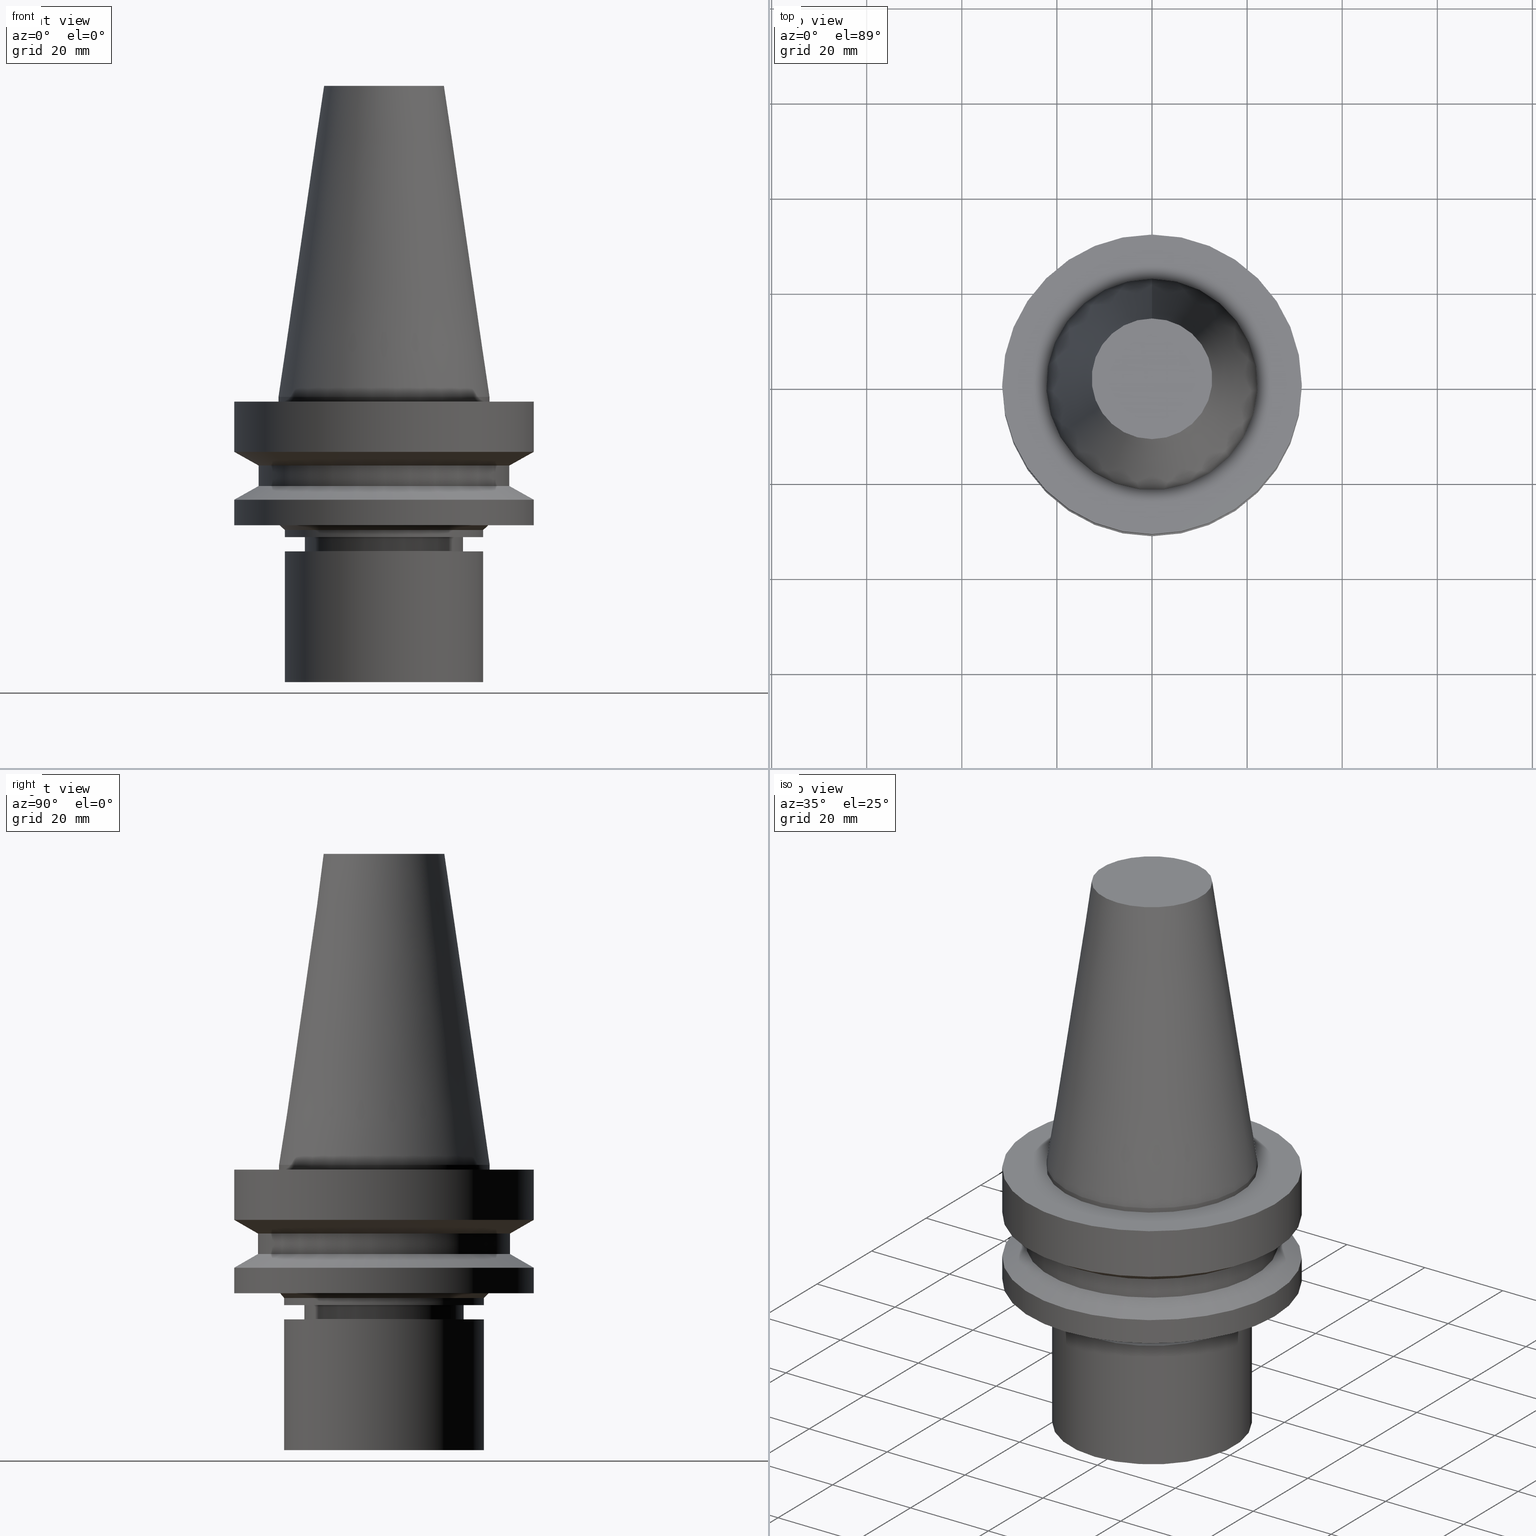
[diagram: canonical four-view strip — front | top / right | iso, engineering-drawing reading convention]
A machine part, canonical four-view strip (front | top / right | iso — engineering-drawing reading convention). The complete STEP part file that produces these views, byte-faithful:
ISO-10303-21;
HEADER;
FILE_DESCRIPTION((''),'1');
FILE_NAME('V:/90_\X2\53D65F9730C730FC30BF\X0\/00_\X2\6DE18DEF30C730FC30BF\X0\/ALL/BBT-BKUS\X2\FF76FF80FF9BFF78FF9E752852A05DE556F3\X0\201801/BBT40-MEGAER/BBT40-MEGAER25-60NL.stp','2018-02-07T02:12:14',(''),(''),'Spatial Interop R21 SP3','Kubotek KeyCreator 2011 V10.0.2 (22737)',' ');
FILE_SCHEMA(('automotive_design'));
ENDSEC;
DATA;
#1=MECHANICAL_DESIGN_GEOMETRIC_PRESENTATION_REPRESENTATION(' ',(#14,#15,#16,#17,#18,#19,#20,#21,#22,#23,#24,#25,#26,#27,#28,#29,#30,#31,#32,#33,#34,#35,#36,#37,#38,#39,#40,#41,#42,#43,#44,#45,#46,#47,#48,#49,#50,#51,#52,#53,#54,#55),#10);
#2=PRODUCT_DEFINITION_CONTEXT('',#56,'design');
#3=APPLICATION_PROTOCOL_DEFINITION('INTERNATIONAL STANDARD','automotive_design',1994,#56);
#4=PRODUCT_CATEGORY_RELATIONSHIP('NONE','NONE',#57,#58);
#5=SHAPE_DEFINITION_REPRESENTATION(#59,#60);
#6=PRODUCT_DEFINITION_CONTEXT('',#61,'design');
#7=APPLICATION_PROTOCOL_DEFINITION('INTERNATIONAL STANDARD','automotive_design',1994,#61);
#8=PRODUCT_CATEGORY_RELATIONSHIP('NONE','NONE',#62,#63);
#9=SHAPE_DEFINITION_REPRESENTATION(#64,#65);
#10= (GEOMETRIC_REPRESENTATION_CONTEXT(3)GLOBAL_UNCERTAINTY_ASSIGNED_CONTEXT((#68))GLOBAL_UNIT_ASSIGNED_CONTEXT((#70,#71,#72))REPRESENTATION_CONTEXT('NONE','WORKSPACE'));
#14=STYLED_ITEM('',(#74,#75),#76);
#15=STYLED_ITEM('',(#77,#78),#79);
#16=STYLED_ITEM('',(#80),#81);
#17=STYLED_ITEM('',(#82,#83),#84);
#18=STYLED_ITEM('',(#85),#86);
#19=STYLED_ITEM('',(#87),#88);
#20=STYLED_ITEM('',(#89),#90);
#21=STYLED_ITEM('',(#91,#92),#93);
#22=STYLED_ITEM('',(#94,#95),#96);
#23=STYLED_ITEM('',(#97,#98),#99);
#24=STYLED_ITEM('',(#100),#101);
#25=STYLED_ITEM('',(#102),#103);
#26=STYLED_ITEM('',(#104),#105);
#27=STYLED_ITEM('',(#106),#107);
#28=STYLED_ITEM('',(#108,#109),#110);
#29=STYLED_ITEM('',(#111),#112);
#30=STYLED_ITEM('',(#113),#114);
#31=STYLED_ITEM('',(#115,#116),#117);
#32=STYLED_ITEM('',(#118,#119),#120);
#33=STYLED_ITEM('',(#121),#122);
#34=STYLED_ITEM('',(#123,#124),#125);
#35=STYLED_ITEM('',(#126,#127),#128);
#36=STYLED_ITEM('',(#129,#130),#131);
#37=STYLED_ITEM('',(#132,#133),#134);
#38=STYLED_ITEM('',(#135,#136),#137);
#39=STYLED_ITEM('',(#138),#139);
#40=STYLED_ITEM('',(#140),#141);
#41=STYLED_ITEM('',(#142),#143);
#42=STYLED_ITEM('',(#144),#145);
#43=STYLED_ITEM('',(#146),#147);
#44=STYLED_ITEM('',(#148,#149),#150);
#45=STYLED_ITEM('',(#151,#152),#153);
#46=STYLED_ITEM('',(#154),#155);
#47=STYLED_ITEM('',(#156,#157),#158);
#48=STYLED_ITEM('',(#159,#160),#161);
#49=STYLED_ITEM('',(#162),#163);
#50=STYLED_ITEM('',(#164,#165),#166);
#51=STYLED_ITEM('',(#167,#168),#169);
#52=STYLED_ITEM('',(#170,#171),#172);
#53=STYLED_ITEM('',(#173),#174);
#54=STYLED_ITEM('',(#175,#176),#177);
#55=STYLED_ITEM('',(#178,#179),#180);
#56=APPLICATION_CONTEXT(' ');
#57=PRODUCT_CATEGORY('part','NONE');
#58=PRODUCT_RELATED_PRODUCT_CATEGORY('detail',' ',(#181));
#59=PRODUCT_DEFINITION_SHAPE('NONE','NONE',#182);
#60=ADVANCED_BREP_SHAPE_REPRESENTATION('Unnamed[1]',(#76,#183),#10);
#61=APPLICATION_CONTEXT(' ');
#62=PRODUCT_CATEGORY('part','NONE');
#63=PRODUCT_RELATED_PRODUCT_CATEGORY('detail',' ',(#184));
#64=PRODUCT_DEFINITION_SHAPE('NONE','NONE',#185);
#65=ADVANCED_BREP_SHAPE_REPRESENTATION('Unnamed[1]',(#177,#186),#10);
#68=UNCERTAINTY_MEASURE_WITH_UNIT(LENGTH_MEASURE(1.0E-006),#70,'','');
#70= (CONVERSION_BASED_UNIT('MILLIMETRE',#189)LENGTH_UNIT()NAMED_UNIT(#192));
#71= (NAMED_UNIT(#194)PLANE_ANGLE_UNIT()SI_UNIT($,.RADIAN.));
#72= (NAMED_UNIT(#194)SOLID_ANGLE_UNIT()SI_UNIT($,.STERADIAN.));
#74=PRESENTATION_STYLE_ASSIGNMENT((#200));
#75=PRESENTATION_STYLE_ASSIGNMENT((#201));
#76=MANIFOLD_SOLID_BREP('Unnamed[1]',#202);
#77=PRESENTATION_STYLE_ASSIGNMENT((#203));
#78=PRESENTATION_STYLE_ASSIGNMENT((#204));
#79=ADVANCED_FACE('Unnamed[1]',(#205,#206),#207,.T.);
#80=PRESENTATION_STYLE_ASSIGNMENT((#208));
#81=EDGE_CURVE('Unnamed[1]',#209,#209,#210,.T.);
#82=PRESENTATION_STYLE_ASSIGNMENT((#211));
#83=PRESENTATION_STYLE_ASSIGNMENT((#212));
#84=ADVANCED_FACE('Unnamed[1]',(#213),#214,.T.);
#85=PRESENTATION_STYLE_ASSIGNMENT((#215));
#86=EDGE_CURVE('Unnamed[1]',#216,#216,#217,.T.);
#87=PRESENTATION_STYLE_ASSIGNMENT((#218));
#88=EDGE_CURVE('Unnamed[1]',#219,#219,#220,.T.);
#89=PRESENTATION_STYLE_ASSIGNMENT((#221));
#90=EDGE_CURVE('Unnamed[1]',#222,#222,#223,.T.);
#91=PRESENTATION_STYLE_ASSIGNMENT((#224));
#92=PRESENTATION_STYLE_ASSIGNMENT((#225));
#93=ADVANCED_FACE('Unnamed[1]',(#226,#227),#228,.T.);
#94=PRESENTATION_STYLE_ASSIGNMENT((#229));
#95=PRESENTATION_STYLE_ASSIGNMENT((#230));
#96=ADVANCED_FACE('Unnamed[1]',(#231),#232,.T.);
#97=PRESENTATION_STYLE_ASSIGNMENT((#233));
#98=PRESENTATION_STYLE_ASSIGNMENT((#234));
#99=ADVANCED_FACE('Unnamed[1]',(#235,#236),#237,.T.);
#100=PRESENTATION_STYLE_ASSIGNMENT((#238));
#101=EDGE_CURVE('Unnamed[1]',#239,#239,#240,.T.);
#102=PRESENTATION_STYLE_ASSIGNMENT((#241));
#103=EDGE_CURVE('Unnamed[1]',#242,#242,#243,.T.);
#104=PRESENTATION_STYLE_ASSIGNMENT((#244));
#105=EDGE_CURVE('Unnamed[1]',#245,#245,#246,.T.);
#106=PRESENTATION_STYLE_ASSIGNMENT((#247));
#107=EDGE_CURVE('Unnamed[1]',#248,#248,#249,.T.);
#108=PRESENTATION_STYLE_ASSIGNMENT((#250));
#109=PRESENTATION_STYLE_ASSIGNMENT((#251));
#110=ADVANCED_FACE('Unnamed[1]',(#252,#253),#254,.T.);
#111=PRESENTATION_STYLE_ASSIGNMENT((#255));
#112=EDGE_CURVE('Unnamed[1]',#256,#256,#257,.T.);
#113=PRESENTATION_STYLE_ASSIGNMENT((#258));
#114=EDGE_CURVE('Unnamed[1]',#259,#259,#260,.T.);
#115=PRESENTATION_STYLE_ASSIGNMENT((#261));
#116=PRESENTATION_STYLE_ASSIGNMENT((#262));
#117=ADVANCED_FACE('Unnamed[1]',(#263,#264),#265,.T.);
#118=PRESENTATION_STYLE_ASSIGNMENT((#266));
#119=PRESENTATION_STYLE_ASSIGNMENT((#267));
#120=ADVANCED_FACE('Unnamed[1]',(#268,#269),#270,.T.);
#121=PRESENTATION_STYLE_ASSIGNMENT((#271));
#122=EDGE_CURVE('Unnamed[1]',#272,#272,#273,.T.);
#123=PRESENTATION_STYLE_ASSIGNMENT((#274));
#124=PRESENTATION_STYLE_ASSIGNMENT((#275));
#125=ADVANCED_FACE('Unnamed[1]',(#276,#277),#278,.T.);
#126=PRESENTATION_STYLE_ASSIGNMENT((#279));
#127=PRESENTATION_STYLE_ASSIGNMENT((#280));
#128=ADVANCED_FACE('Unnamed[1]',(#281,#282),#283,.T.);
#129=PRESENTATION_STYLE_ASSIGNMENT((#284));
#130=PRESENTATION_STYLE_ASSIGNMENT((#285));
#131=ADVANCED_FACE('Unnamed[1]',(#286,#287),#288,.T.);
#132=PRESENTATION_STYLE_ASSIGNMENT((#289));
#133=PRESENTATION_STYLE_ASSIGNMENT((#290));
#134=ADVANCED_FACE('Unnamed[1]',(#291),#292,.T.);
#135=PRESENTATION_STYLE_ASSIGNMENT((#293));
#136=PRESENTATION_STYLE_ASSIGNMENT((#294));
#137=ADVANCED_FACE('Unnamed[1]',(#295,#296),#297,.T.);
#138=PRESENTATION_STYLE_ASSIGNMENT((#298));
#139=EDGE_CURVE('Unnamed[1]',#299,#299,#300,.T.);
#140=PRESENTATION_STYLE_ASSIGNMENT((#301));
#141=EDGE_CURVE('Unnamed[1]',#302,#302,#303,.T.);
#142=PRESENTATION_STYLE_ASSIGNMENT((#304));
#143=EDGE_CURVE('Unnamed[1]',#305,#305,#306,.T.);
#144=PRESENTATION_STYLE_ASSIGNMENT((#307));
#145=EDGE_CURVE('Unnamed[1]',#308,#308,#309,.T.);
#146=PRESENTATION_STYLE_ASSIGNMENT((#310));
#147=EDGE_CURVE('Unnamed[1]',#311,#311,#312,.T.);
#148=PRESENTATION_STYLE_ASSIGNMENT((#313));
#149=PRESENTATION_STYLE_ASSIGNMENT((#314));
#150=ADVANCED_FACE('Unnamed[1]',(#315,#316),#317,.T.);
#151=PRESENTATION_STYLE_ASSIGNMENT((#318));
#152=PRESENTATION_STYLE_ASSIGNMENT((#319));
#153=ADVANCED_FACE('Unnamed[1]',(#320,#321),#322,.T.);
#154=PRESENTATION_STYLE_ASSIGNMENT((#323));
#155=EDGE_CURVE('Unnamed[1]',#324,#324,#325,.T.);
#156=PRESENTATION_STYLE_ASSIGNMENT((#326));
#157=PRESENTATION_STYLE_ASSIGNMENT((#327));
#158=ADVANCED_FACE('Unnamed[1]',(#328,#329),#330,.T.);
#159=PRESENTATION_STYLE_ASSIGNMENT((#331));
#160=PRESENTATION_STYLE_ASSIGNMENT((#332));
#161=ADVANCED_FACE('Unnamed[1]',(#333,#334),#335,.T.);
#162=PRESENTATION_STYLE_ASSIGNMENT((#336));
#163=EDGE_CURVE('Unnamed[1]',#337,#337,#338,.T.);
#164=PRESENTATION_STYLE_ASSIGNMENT((#339));
#165=PRESENTATION_STYLE_ASSIGNMENT((#340));
#166=ADVANCED_FACE('Unnamed[1]',(#341,#342),#343,.T.);
#167=PRESENTATION_STYLE_ASSIGNMENT((#344));
#168=PRESENTATION_STYLE_ASSIGNMENT((#345));
#169=ADVANCED_FACE('Unnamed[1]',(#346,#347),#348,.T.);
#170=PRESENTATION_STYLE_ASSIGNMENT((#349));
#171=PRESENTATION_STYLE_ASSIGNMENT((#350));
#172=ADVANCED_FACE('Unnamed[1]',(#351),#352,.T.);
#173=PRESENTATION_STYLE_ASSIGNMENT((#353));
#174=EDGE_CURVE('Unnamed[1]',#354,#354,#355,.T.);
#175=PRESENTATION_STYLE_ASSIGNMENT((#356));
#176=PRESENTATION_STYLE_ASSIGNMENT((#357));
#177=MANIFOLD_SOLID_BREP('Unnamed[1]',#358);
#178=PRESENTATION_STYLE_ASSIGNMENT((#359));
#179=PRESENTATION_STYLE_ASSIGNMENT((#360));
#180=ADVANCED_FACE('Unnamed[1]',(#361,#362),#363,.T.);
#181=PRODUCT('Unnamed[1]','Unnamed[1]','PART-Unnamed[1]-DESC',(#364));
#182=PRODUCT_DEFINITION('NONE','NONE',#365,#2);
#183=AXIS2_PLACEMENT_3D('',#366,#367,#368);
#184=PRODUCT('Unnamed[1]','Unnamed[1]','PART-Unnamed[1]-DESC',(#369));
#185=PRODUCT_DEFINITION('NONE','NONE',#370,#6);
#186=AXIS2_PLACEMENT_3D('',#371,#372,#373);
#189=LENGTH_MEASURE_WITH_UNIT(LENGTH_MEASURE(1.0),#374);
#192=DIMENSIONAL_EXPONENTS(1.0,0.0,0.0,0.0,0.0,0.0,0.0);
#194=DIMENSIONAL_EXPONENTS(0.0,0.0,0.0,0.0,0.0,0.0,0.0);
#200=SURFACE_STYLE_USAGE(.BOTH.,#375);
#201=CURVE_STYLE('',#376,POSITIVE_LENGTH_MEASURE(1000.0),#377);
#202=CLOSED_SHELL('',(#134,#110,#128,#137,#99,#93,#131,#120,#117,#180,#166,#169,#161,#150,#79,#125,#153,#172));
#203=SURFACE_STYLE_USAGE(.BOTH.,#378);
#204=CURVE_STYLE('',#379,POSITIVE_LENGTH_MEASURE(1000.0),#380);
#205=FACE_BOUND('',#381,.T.);
#206=FACE_BOUND('',#382,.T.);
#207=CONICAL_SURFACE('',#383,16.3750000000008,1.04719755120066);
#208=CURVE_STYLE('',#384,POSITIVE_LENGTH_MEASURE(1000.0),#385);
#209=VERTEX_POINT('',#386);
#210=CIRCLE('',#387,26.5);
#211=SURFACE_STYLE_USAGE(.BOTH.,#388);
#212=CURVE_STYLE('',#389,POSITIVE_LENGTH_MEASURE(1000.0),#390);
#213=FACE_OUTER_BOUND('',#391,.T.);
#214=PLANE('',#392);
#215=CURVE_STYLE('',#393,POSITIVE_LENGTH_MEASURE(1000.0),#394);
#216=VERTEX_POINT('',#395);
#217=CIRCLE('',#396,21.0000000000001);
#218=CURVE_STYLE('',#397,POSITIVE_LENGTH_MEASURE(1000.0),#398);
#219=VERTEX_POINT('',#399);
#220=CIRCLE('',#400,14.9000000000006);
#221=CURVE_STYLE('',#401,POSITIVE_LENGTH_MEASURE(1000.0),#402);
#222=VERTEX_POINT('',#403);
#223=CIRCLE('',#404,31.4999999999996);
#224=SURFACE_STYLE_USAGE(.BOTH.,#405);
#225=CURVE_STYLE('',#406,POSITIVE_LENGTH_MEASURE(1000.0),#407);
#226=FACE_BOUND('',#408,.T.);
#227=FACE_BOUND('',#409,.T.);
#228=CONICAL_SURFACE('',#410,28.9999999999999,1.04719755119657);
#229=SURFACE_STYLE_USAGE(.BOTH.,#411);
#230=CURVE_STYLE('',#412,POSITIVE_LENGTH_MEASURE(1000.0),#413);
#231=FACE_OUTER_BOUND('',#414,.T.);
#232=PLANE('',#415);
#233=SURFACE_STYLE_USAGE(.BOTH.,#416);
#234=CURVE_STYLE('',#417,POSITIVE_LENGTH_MEASURE(1000.0),#418);
#235=FACE_BOUND('',#419,.T.);
#236=FACE_BOUND('',#420,.T.);
#237=CYLINDRICAL_SURFACE('',#421,31.5);
#238=CURVE_STYLE('',#422,POSITIVE_LENGTH_MEASURE(1000.0),#423);
#239=VERTEX_POINT('',#424);
#240=CIRCLE('',#425,21.0);
#241=CURVE_STYLE('',#426,POSITIVE_LENGTH_MEASURE(1000.0),#427);
#242=VERTEX_POINT('',#428);
#243=CIRCLE('',#429,16.0);
#244=CURVE_STYLE('',#430,POSITIVE_LENGTH_MEASURE(1000.0),#431);
#245=VERTEX_POINT('',#432);
#246=CIRCLE('',#433,26.4999999999994);
#247=CURVE_STYLE('',#434,POSITIVE_LENGTH_MEASURE(1000.0),#435);
#248=VERTEX_POINT('',#436);
#249=CIRCLE('',#437,31.5000000000007);
#250=SURFACE_STYLE_USAGE(.BOTH.,#438);
#251=CURVE_STYLE('',#439,POSITIVE_LENGTH_MEASURE(1000.0),#440);
#252=FACE_BOUND('',#441,.T.);
#253=FACE_BOUND('',#442,.T.);
#254=CONICAL_SURFACE('',#443,17.4562500000001,0.144812498238936);
#255=CURVE_STYLE('',#444,POSITIVE_LENGTH_MEASURE(1000.0),#445);
#256=VERTEX_POINT('',#446);
#257=CIRCLE('',#447,22.225);
#258=CURVE_STYLE('',#448,POSITIVE_LENGTH_MEASURE(1000.0),#449);
#259=VERTEX_POINT('',#450);
#260=CIRCLE('',#451,22.225);
#261=SURFACE_STYLE_USAGE(.BOTH.,#452);
#262=CURVE_STYLE('',#453,POSITIVE_LENGTH_MEASURE(1000.0),#454);
#263=FACE_BOUND('',#455,.T.);
#264=FACE_BOUND('',#456,.T.);
#265=CYLINDRICAL_SURFACE('',#457,31.5000000000005);
#266=SURFACE_STYLE_USAGE(.BOTH.,#458);
#267=CURVE_STYLE('',#459,POSITIVE_LENGTH_MEASURE(1000.0),#460);
#268=FACE_BOUND('',#461,.T.);
#269=FACE_BOUND('',#462,.T.);
#270=CONICAL_SURFACE('',#463,29.0000000000003,1.04719755119651);
#271=CURVE_STYLE('',#464,POSITIVE_LENGTH_MEASURE(1000.0),#465);
#272=VERTEX_POINT('',#466);
#273=CIRCLE('',#467,12.6875000000001);
#274=SURFACE_STYLE_USAGE(.BOTH.,#468);
#275=CURVE_STYLE('',#469,POSITIVE_LENGTH_MEASURE(1000.0),#470);
#276=FACE_BOUND('',#471,.T.);
#277=FACE_BOUND('',#472,.T.);
#278=CYLINDRICAL_SURFACE('',#473,16.0);
#279=SURFACE_STYLE_USAGE(.BOTH.,#474);
#280=CURVE_STYLE('',#475,POSITIVE_LENGTH_MEASURE(1000.0),#476);
#281=FACE_BOUND('',#477,.T.);
#282=FACE_BOUND('',#478,.T.);
#283=CYLINDRICAL_SURFACE('',#479,22.225);
#284=SURFACE_STYLE_USAGE(.BOTH.,#480);
#285=CURVE_STYLE('',#481,POSITIVE_LENGTH_MEASURE(1000.0),#482);
#286=FACE_BOUND('',#483,.T.);
#287=FACE_BOUND('',#484,.T.);
#288=CYLINDRICAL_SURFACE('',#485,26.4999999999997);
#289=SURFACE_STYLE_USAGE(.BOTH.,#486);
#290=CURVE_STYLE('',#487,POSITIVE_LENGTH_MEASURE(1000.0),#488);
#291=FACE_OUTER_BOUND('',#489,.T.);
#292=PLANE('',#490);
#293=SURFACE_STYLE_USAGE(.BOTH.,#491);
#294=CURVE_STYLE('',#492,POSITIVE_LENGTH_MEASURE(1000.0),#493);
#295=FACE_OUTER_BOUND('',#494,.T.);
#296=FACE_BOUND('',#495,.T.);
#297=PLANE('',#496);
#298=CURVE_STYLE('',#497,POSITIVE_LENGTH_MEASURE(1000.0),#498);
#299=VERTEX_POINT('',#499);
#300=CIRCLE('',#500,22.0000000000001);
#301=CURVE_STYLE('',#501,POSITIVE_LENGTH_MEASURE(1000.0),#502);
#302=VERTEX_POINT('',#503);
#303=CIRCLE('',#504,16.0);
#304=CURVE_STYLE('',#505,POSITIVE_LENGTH_MEASURE(1000.0),#506);
#305=VERTEX_POINT('',#507);
#306=CIRCLE('',#508,16.7500000000017);
#307=CURVE_STYLE('',#509,POSITIVE_LENGTH_MEASURE(1000.0),#510);
#308=VERTEX_POINT('',#511);
#309=CIRCLE('',#512,31.5000000000003);
#310=CURVE_STYLE('',#513,POSITIVE_LENGTH_MEASURE(1000.0),#514);
#311=VERTEX_POINT('',#515);
#312=CIRCLE('',#516,21.0);
#313=SURFACE_STYLE_USAGE(.BOTH.,#517);
#314=CURVE_STYLE('',#518,POSITIVE_LENGTH_MEASURE(1000.0),#519);
#315=FACE_BOUND('',#520,.T.);
#316=FACE_BOUND('',#521,.T.);
#317=CYLINDRICAL_SURFACE('',#522,16.7499999999962);
#318=SURFACE_STYLE_USAGE(.BOTH.,#523);
#319=CURVE_STYLE('',#524,POSITIVE_LENGTH_MEASURE(1000.0),#525);
#320=FACE_BOUND('',#526,.T.);
#321=FACE_BOUND('',#527,.T.);
#322=CONICAL_SURFACE('',#528,15.4500000000003,0.523598775598046);
#323=CURVE_STYLE('',#529,POSITIVE_LENGTH_MEASURE(1000.0),#530);
#324=VERTEX_POINT('',#531);
#325=CIRCLE('',#532,16.7499999999907);
#326=SURFACE_STYLE_USAGE(.BOTH.,#533);
#327=CURVE_STYLE('',#534,POSITIVE_LENGTH_MEASURE(1000.0),#535);
#328=FACE_BOUND('',#536,.T.);
#329=FACE_BOUND('',#537,.T.);
#330=CYLINDRICAL_SURFACE('',#538,21.0);
#331=SURFACE_STYLE_USAGE(.BOTH.,#539);
#332=CURVE_STYLE('',#540,POSITIVE_LENGTH_MEASURE(1000.0),#541);
#333=FACE_BOUND('',#542,.T.);
#334=FACE_OUTER_BOUND('',#543,.T.);
#335=PLANE('',#544);
#336=CURVE_STYLE('',#545,POSITIVE_LENGTH_MEASURE(1000.0),#546);
#337=VERTEX_POINT('',#547);
#338=CIRCLE('',#548,31.5000000000004);
#339=SURFACE_STYLE_USAGE(.BOTH.,#549);
#340=CURVE_STYLE('',#550,POSITIVE_LENGTH_MEASURE(1000.0),#551);
#341=FACE_BOUND('',#552,.T.);
#342=FACE_BOUND('',#553,.T.);
#343=CONICAL_SURFACE('',#554,21.5000000000001,0.785398163397357);
#344=SURFACE_STYLE_USAGE(.BOTH.,#555);
#345=CURVE_STYLE('',#556,POSITIVE_LENGTH_MEASURE(1000.0),#557);
#346=FACE_BOUND('',#558,.T.);
#347=FACE_BOUND('',#559,.T.);
#348=CYLINDRICAL_SURFACE('',#560,21.0000000000001);
#349=SURFACE_STYLE_USAGE(.BOTH.,#561);
#350=CURVE_STYLE('',#562,POSITIVE_LENGTH_MEASURE(1000.0),#563);
#351=FACE_OUTER_BOUND('',#564,.T.);
#352=PLANE('',#565);
#353=CURVE_STYLE('',#566,POSITIVE_LENGTH_MEASURE(1000.0),#567);
#354=VERTEX_POINT('',#568);
#355=CIRCLE('',#569,21.0000000000001);
#356=SURFACE_STYLE_USAGE(.BOTH.,#570);
#357=CURVE_STYLE('',#571,POSITIVE_LENGTH_MEASURE(1000.0),#572);
#358=CLOSED_SHELL('',(#96,#84,#158));
#359=SURFACE_STYLE_USAGE(.BOTH.,#573);
#360=CURVE_STYLE('',#574,POSITIVE_LENGTH_MEASURE(1000.0),#575);
#361=FACE_BOUND('',#576,.T.);
#362=FACE_OUTER_BOUND('',#577,.T.);
#363=PLANE('',#578);
#364=PRODUCT_CONTEXT('',#56,'mechanical');
#365=PRODUCT_DEFINITION_FORMATION_WITH_SPECIFIED_SOURCE(' ','NONE',#181,.NOT_KNOWN.);
#366=CARTESIAN_POINT('',(0.0,0.0,0.0));
#367=DIRECTION('',(0.0,0.0,1.0));
#368=DIRECTION('',(1.0,0.0,0.0));
#369=PRODUCT_CONTEXT('',#61,'mechanical');
#370=PRODUCT_DEFINITION_FORMATION_WITH_SPECIFIED_SOURCE(' ','NONE',#184,.NOT_KNOWN.);
#371=CARTESIAN_POINT('',(0.0,0.0,0.0));
#372=DIRECTION('',(0.0,0.0,1.0));
#373=DIRECTION('',(1.0,0.0,0.0));
#374= (NAMED_UNIT(#192)LENGTH_UNIT()SI_UNIT(.MILLI.,.METRE.));
#375=SURFACE_SIDE_STYLE('',(#580));
#376=DRAUGHTING_PRE_DEFINED_CURVE_FONT('continuous');
#377=COLOUR_RGB('',0.0,1.0,0.0);
#378=SURFACE_SIDE_STYLE('',(#581));
#379=DRAUGHTING_PRE_DEFINED_CURVE_FONT('continuous');
#380=COLOUR_RGB('',0.0,1.0,0.0);
#381=EDGE_LOOP('',(#582));
#382=EDGE_LOOP('',(#583));
#383=AXIS2_PLACEMENT_3D('',#584,#585,#586);
#384=DRAUGHTING_PRE_DEFINED_CURVE_FONT('continuous');
#385=COLOUR_RGB('',0.0,1.0,0.0);
#386=CARTESIAN_POINT('',(1.1479681728942E-015,26.5,-18.7477430013855));
#387=AXIS2_PLACEMENT_3D('',#587,#588,#589);
#388=SURFACE_SIDE_STYLE('',(#590));
#389=DRAUGHTING_PRE_DEFINED_CURVE_FONT('continuous');
#390=COLOUR_RGB('',0.0,1.0,0.0);
#391=EDGE_LOOP('',(#591));
#392=AXIS2_PLACEMENT_3D('',#592,#593,#594);
#393=DRAUGHTING_PRE_DEFINED_CURVE_FONT('continuous');
#394=COLOUR_RGB('',0.0,1.0,0.0);
#395=CARTESIAN_POINT('',(1.80635402874234E-015,21.0000000000002,-29.4999999999999));
#396=AXIS2_PLACEMENT_3D('',#595,#596,#597);
#397=DRAUGHTING_PRE_DEFINED_CURVE_FONT('continuous');
#398=COLOUR_RGB('',0.0,1.0,0.0);
#399=CARTESIAN_POINT('',(3.04937052987692E-015,14.9000000000006,-49.8000000000001));
#400=AXIS2_PLACEMENT_3D('',#598,#599,#600);
#401=DRAUGHTING_PRE_DEFINED_CURVE_FONT('continuous');
#402=COLOUR_RGB('',0.0,1.0,0.0);
#403=CARTESIAN_POINT('',(6.12323399573568E-017,31.4999999999997,-0.999999999999825));
#404=AXIS2_PLACEMENT_3D('',#601,#602,#603);
#405=SURFACE_SIDE_STYLE('',(#604));
#406=DRAUGHTING_PRE_DEFINED_CURVE_FONT('continuous');
#407=COLOUR_RGB('',0.0,1.0,0.0);
#408=EDGE_LOOP('',(#605));
#409=EDGE_LOOP('',(#606));
#410=AXIS2_PLACEMENT_3D('',#607,#608,#609);
#411=SURFACE_SIDE_STYLE('',(#610));
#412=DRAUGHTING_PRE_DEFINED_CURVE_FONT('continuous');
#413=COLOUR_RGB('',0.0,1.0,0.0);
#414=EDGE_LOOP('',(#611));
#415=AXIS2_PLACEMENT_3D('',#612,#613,#614);
#416=SURFACE_SIDE_STYLE('',(#615));
#417=DRAUGHTING_PRE_DEFINED_CURVE_FONT('continuous');
#418=COLOUR_RGB('',0.0,1.0,0.0);
#419=EDGE_LOOP('',(#616));
#420=EDGE_LOOP('',(#617));
#421=AXIS2_PLACEMENT_3D('',#618,#619,#620);
#422=DRAUGHTING_PRE_DEFINED_CURVE_FONT('continuous');
#423=COLOUR_RGB('',0.0,1.0,0.0);
#424=CARTESIAN_POINT('',(3.67394039744205E-015,21.0,-59.9999999999999));
#425=AXIS2_PLACEMENT_3D('',#621,#622,#623);
#426=DRAUGHTING_PRE_DEFINED_CURVE_FONT('continuous');
#427=COLOUR_RGB('',0.0,1.0,0.0);
#428=CARTESIAN_POINT('',(2.19826167450456E-015,16.0,-35.90033756729));
#429=AXIS2_PLACEMENT_3D('',#624,#625,#626);
#430=DRAUGHTING_PRE_DEFINED_CURVE_FONT('continuous');
#431=COLOUR_RGB('',0.0,1.0,0.0);
#432=CARTESIAN_POINT('',(8.8494551369045E-016,26.4999999999995,-14.4522569986152));
#433=AXIS2_PLACEMENT_3D('',#627,#628,#629);
#434=DRAUGHTING_PRE_DEFINED_CURVE_FONT('continuous');
#435=COLOUR_RGB('',0.0,1.0,0.0);
#436=CARTESIAN_POINT('',(1.32473071268174E-015,31.5000000000007,-21.6344943473346));
#437=AXIS2_PLACEMENT_3D('',#630,#631,#632);
#438=SURFACE_SIDE_STYLE('',(#633));
#439=DRAUGHTING_PRE_DEFINED_CURVE_FONT('continuous');
#440=COLOUR_RGB('',0.0,1.0,0.0);
#441=EDGE_LOOP('',(#634));
#442=EDGE_LOOP('',(#635));
#443=AXIS2_PLACEMENT_3D('',#636,#637,#638);
#444=DRAUGHTING_PRE_DEFINED_CURVE_FONT('continuous');
#445=COLOUR_RGB('',0.0,1.0,0.0);
#446=CARTESIAN_POINT('',(6.12323399573622E-017,22.2250000000001,-0.999999999999912));
#447=AXIS2_PLACEMENT_3D('',#639,#640,#641);
#448=DRAUGHTING_PRE_DEFINED_CURVE_FONT('continuous');
#449=COLOUR_RGB('',0.0,1.0,0.0);
#450=CARTESIAN_POINT('',(1.71319921032766E-029,22.2250000000001,-2.8153873565375E-013));
#451=AXIS2_PLACEMENT_3D('',#642,#643,#644);
#452=SURFACE_SIDE_STYLE('',(#645));
#453=DRAUGHTING_PRE_DEFINED_CURVE_FONT('continuous');
#454=COLOUR_RGB('',0.0,1.0,0.0);
#455=EDGE_LOOP('',(#646));
#456=EDGE_LOOP('',(#647));
#457=AXIS2_PLACEMENT_3D('',#648,#649,#650);
#458=SURFACE_SIDE_STYLE('',(#651));
#459=DRAUGHTING_PRE_DEFINED_CURVE_FONT('continuous');
#460=COLOUR_RGB('',0.0,1.0,0.0);
#461=EDGE_LOOP('',(#652));
#462=EDGE_LOOP('',(#653));
#463=AXIS2_PLACEMENT_3D('',#654,#655,#656);
#464=DRAUGHTING_PRE_DEFINED_CURVE_FONT('continuous');
#465=COLOUR_RGB('',0.0,1.0,0.0);
#466=CARTESIAN_POINT('',(-4.00459503321185E-015,12.6875000000002,65.4000000000001));
#467=AXIS2_PLACEMENT_3D('',#657,#658,#659);
#468=SURFACE_SIDE_STYLE('',(#660));
#469=DRAUGHTING_PRE_DEFINED_CURVE_FONT('continuous');
#470=COLOUR_RGB('',0.0,1.0,0.0);
#471=EDGE_LOOP('',(#661));
#472=EDGE_LOOP('',(#662));
#473=AXIS2_PLACEMENT_3D('',#663,#664,#665);
#474=SURFACE_SIDE_STYLE('',(#666));
#475=DRAUGHTING_PRE_DEFINED_CURVE_FONT('continuous');
#476=COLOUR_RGB('',0.0,1.0,0.0);
#477=EDGE_LOOP('',(#667));
#478=EDGE_LOOP('',(#668));
#479=AXIS2_PLACEMENT_3D('',#669,#670,#671);
#480=SURFACE_SIDE_STYLE('',(#672));
#481=DRAUGHTING_PRE_DEFINED_CURVE_FONT('continuous');
#482=COLOUR_RGB('',0.0,1.0,0.0);
#483=EDGE_LOOP('',(#673));
#484=EDGE_LOOP('',(#674));
#485=AXIS2_PLACEMENT_3D('',#675,#676,#677);
#486=SURFACE_SIDE_STYLE('',(#678));
#487=DRAUGHTING_PRE_DEFINED_CURVE_FONT('continuous');
#488=COLOUR_RGB('',0.0,1.0,0.0);
#489=EDGE_LOOP('',(#679));
#490=AXIS2_PLACEMENT_3D('',#680,#681,#682);
#491=SURFACE_SIDE_STYLE('',(#683));
#492=DRAUGHTING_PRE_DEFINED_CURVE_FONT('continuous');
#493=COLOUR_RGB('',0.0,1.0,0.0);
#494=EDGE_LOOP('',(#684));
#495=EDGE_LOOP('',(#685));
#496=AXIS2_PLACEMENT_3D('',#686,#687,#688);
#497=DRAUGHTING_PRE_DEFINED_CURVE_FONT('continuous');
#498=COLOUR_RGB('',0.0,1.0,0.0);
#499=CARTESIAN_POINT('',(1.65327317884891E-015,22.0000000000001,-26.9999999999998));
#500=AXIS2_PLACEMENT_3D('',#689,#690,#691);
#501=DRAUGHTING_PRE_DEFINED_CURVE_FONT('continuous');
#502=COLOUR_RGB('',0.0,1.0,0.0);
#503=CARTESIAN_POINT('',(2.93270725361717E-015,16.0,-47.8947441116743));
#504=AXIS2_PLACEMENT_3D('',#692,#693,#694);
#505=DRAUGHTING_PRE_DEFINED_CURVE_FONT('continuous');
#506=COLOUR_RGB('',0.0,1.0,0.0);
#507=CARTESIAN_POINT('',(2.17174729353662E-015,16.7500000000017,-35.4673248654008));
#508=AXIS2_PLACEMENT_3D('',#695,#696,#697);
#509=DRAUGHTING_PRE_DEFINED_CURVE_FONT('continuous');
#510=COLOUR_RGB('',0.0,1.0,0.0);
#511=CARTESIAN_POINT('',(7.08182973902924E-016,31.5000000000004,-11.5655056526664));
#512=AXIS2_PLACEMENT_3D('',#698,#699,#700);
#513=DRAUGHTING_PRE_DEFINED_CURVE_FONT('continuous');
#514=COLOUR_RGB('',0.0,1.0,0.0);
#515=CARTESIAN_POINT('',(1.99005104861444E-015,21.0,-32.4999999999999));
#516=AXIS2_PLACEMENT_3D('',#701,#702,#703);
#517=SURFACE_SIDE_STYLE('',(#704));
#518=DRAUGHTING_PRE_DEFINED_CURVE_FONT('continuous');
#519=COLOUR_RGB('',0.0,1.0,0.0);
#520=EDGE_LOOP('',(#705));
#521=EDGE_LOOP('',(#706));
#522=AXIS2_PLACEMENT_3D('',#707,#708,#709);
#523=SURFACE_SIDE_STYLE('',(#710));
#524=DRAUGHTING_PRE_DEFINED_CURVE_FONT('continuous');
#525=COLOUR_RGB('',0.0,1.0,0.0);
#526=EDGE_LOOP('',(#711));
#527=EDGE_LOOP('',(#712));
#528=AXIS2_PLACEMENT_3D('',#713,#714,#715);
#529=DRAUGHTING_PRE_DEFINED_CURVE_FONT('continuous');
#530=COLOUR_RGB('',0.0,1.0,0.0);
#531=CARTESIAN_POINT('',(1.80635402874229E-015,16.7499999999907,-29.4999999999991));
#532=AXIS2_PLACEMENT_3D('',#716,#717,#718);
#533=SURFACE_SIDE_STYLE('',(#719));
#534=DRAUGHTING_PRE_DEFINED_CURVE_FONT('continuous');
#535=COLOUR_RGB('',0.0,1.0,0.0);
#536=EDGE_LOOP('',(#720));
#537=EDGE_LOOP('',(#721));
#538=AXIS2_PLACEMENT_3D('',#722,#723,#724);
#539=SURFACE_SIDE_STYLE('',(#725));
#540=DRAUGHTING_PRE_DEFINED_CURVE_FONT('continuous');
#541=COLOUR_RGB('',0.0,1.0,0.0);
#542=EDGE_LOOP('',(#726));
#543=EDGE_LOOP('',(#727));
#544=AXIS2_PLACEMENT_3D('',#728,#729,#730);
#545=DRAUGHTING_PRE_DEFINED_CURVE_FONT('continuous');
#546=COLOUR_RGB('',0.0,1.0,0.0);
#547=CARTESIAN_POINT('',(1.65327317884891E-015,31.5000000000004,-26.9999999999998));
#548=AXIS2_PLACEMENT_3D('',#731,#732,#733);
#549=SURFACE_SIDE_STYLE('',(#734));
#550=DRAUGHTING_PRE_DEFINED_CURVE_FONT('continuous');
#551=COLOUR_RGB('',0.0,1.0,0.0);
#552=EDGE_LOOP('',(#735));
#553=EDGE_LOOP('',(#736));
#554=AXIS2_PLACEMENT_3D('',#737,#738,#739);
#555=SURFACE_SIDE_STYLE('',(#740));
#556=DRAUGHTING_PRE_DEFINED_CURVE_FONT('continuous');
#557=COLOUR_RGB('',0.0,1.0,0.0);
#558=EDGE_LOOP('',(#741));
#559=EDGE_LOOP('',(#742));
#560=AXIS2_PLACEMENT_3D('',#743,#744,#745);
#561=SURFACE_SIDE_STYLE('',(#746));
#562=DRAUGHTING_PRE_DEFINED_CURVE_FONT('continuous');
#563=COLOUR_RGB('',0.0,1.0,0.0);
#564=EDGE_LOOP('',(#747));
#565=AXIS2_PLACEMENT_3D('',#748,#749,#750);
#566=DRAUGHTING_PRE_DEFINED_CURVE_FONT('continuous');
#567=COLOUR_RGB('',0.0,1.0,0.0);
#568=CARTESIAN_POINT('',(1.71450551880629E-015,21.0000000000002,-28.0));
#569=AXIS2_PLACEMENT_3D('',#751,#752,#753);
#570=SURFACE_SIDE_STYLE('',(#754));
#571=DRAUGHTING_PRE_DEFINED_CURVE_FONT('continuous');
#572=COLOUR_RGB('',0.0,1.0,0.0);
#573=SURFACE_SIDE_STYLE('',(#755));
#574=DRAUGHTING_PRE_DEFINED_CURVE_FONT('continuous');
#575=COLOUR_RGB('',0.0,1.0,0.0);
#576=EDGE_LOOP('',(#756));
#577=EDGE_LOOP('',(#757));
#578=AXIS2_PLACEMENT_3D('',#758,#759,#760);
#580=SURFACE_STYLE_FILL_AREA(#761);
#581=SURFACE_STYLE_FILL_AREA(#762);
#582=ORIENTED_EDGE('',*,*,#103,.F.);
#583=ORIENTED_EDGE('',*,*,#143,.T.);
#584=CARTESIAN_POINT('',(2.18500448402059E-015,2.23767261028614E-014,-35.6838312163454));
#585=DIRECTION('',(-6.12323399573677E-017,5.36731610657134E-016,1.0));
#586=DIRECTION('',(2.80381797188541E-032,1.0,-5.36731610657134E-016));
#587=CARTESIAN_POINT('',(1.1479681728942E-015,3.14668600087081E-014,-18.7477430013855));
#588=DIRECTION('',(6.12323399573677E-017,-5.36731610657134E-016,-1.0));
#589=DIRECTION('',(2.80381797188541E-032,1.0,-5.36731610657134E-016));
#590=SURFACE_STYLE_FILL_AREA(#763);
#591=ORIENTED_EDGE('',*,*,#147,.F.);
#592=CARTESIAN_POINT('',(1.99005104861444E-015,10.5,-32.4999999999999));
#593=DIRECTION('',(-6.12323399573677E-017,5.54242687475837E-016,1.0));
#594=DIRECTION('',(-2.91104239276365E-032,-1.0,5.54242687475837E-016));
#595=CARTESIAN_POINT('',(1.80635402874234E-015,2.56957837916424E-014,-29.4999999999999));
#596=DIRECTION('',(6.12323399573677E-017,-5.36731610657134E-016,-1.0));
#597=DIRECTION('',(2.80381797188541E-032,1.0,-5.36731610657134E-016));
#598=CARTESIAN_POINT('',(3.04937052987692E-015,1.48001320953024E-014,-49.8000000000001));
#599=DIRECTION('',(6.12323399573677E-017,-5.36731610657134E-016,-1.0));
#600=DIRECTION('',(2.80381797188541E-032,1.0,-5.36731610657134E-016));
#601=CARTESIAN_POINT('',(6.12323399573559E-017,4.09926346953707E-014,-0.999999999999808));
#602=DIRECTION('',(6.12323399573677E-017,-5.36731610657134E-016,-1.0));
#603=DIRECTION('',(2.80381797188541E-032,1.0,-5.36731610657134E-016));
#604=SURFACE_STYLE_FILL_AREA(#764);
#605=ORIENTED_EDGE('',*,*,#105,.F.);
#606=ORIENTED_EDGE('',*,*,#145,.T.);
#607=CARTESIAN_POINT('',(7.96564243796686E-016,3.45470884792691E-014,-13.0088813256408));
#608=DIRECTION('',(-6.12323399573677E-017,5.36731610657134E-016,1.0));
#609=DIRECTION('',(2.80381797188541E-032,1.0,-5.36731610657134E-016));
#610=SURFACE_STYLE_FILL_AREA(#765);
#611=ORIENTED_EDGE('',*,*,#101,.T.);
#612=CARTESIAN_POINT('',(3.67394039744205E-015,10.5,-59.9999999999999));
#613=DIRECTION('',(6.12323399573677E-017,-5.54242687475836E-016,-1.0));
#614=DIRECTION('',(2.91104239276365E-032,1.0,-5.54242687475836E-016));
#615=SURFACE_STYLE_FILL_AREA(#766);
#616=ORIENTED_EDGE('',*,*,#145,.F.);
#617=ORIENTED_EDGE('',*,*,#90,.T.);
#618=CARTESIAN_POINT('',(3.84707656930139E-016,3.81572142621894E-014,-6.28275282633307));
#619=DIRECTION('',(6.12323399573677E-017,-5.36731610657134E-016,-1.0));
#620=DIRECTION('',(2.80381797188541E-032,1.0,-5.36731610657134E-016));
#621=CARTESIAN_POINT('',(3.67394039744205E-015,9.32546966659976E-015,-59.9999999999999));
#622=DIRECTION('',(6.12323399573677E-017,-5.36731610657134E-016,-1.0));
#623=DIRECTION('',(2.80381797188541E-032,1.0,-5.36731610657134E-016));
#624=CARTESIAN_POINT('',(2.19826167450456E-015,2.22605203004014E-014,-35.90033756729));
#625=DIRECTION('',(6.12323399573677E-017,-5.36731610657134E-016,-1.0));
#626=DIRECTION('',(2.80381797188541E-032,1.0,-5.36731610657134E-016));
#627=CARTESIAN_POINT('',(8.8494551369045E-016,3.37723831295302E-014,-14.4522569986152));
#628=DIRECTION('',(6.12323399573677E-017,-5.36731610657134E-016,-1.0));
#629=DIRECTION('',(2.80381797188541E-032,1.0,-5.36731610657134E-016));
#630=CARTESIAN_POINT('',(1.32473071268174E-015,2.99174493092302E-014,-21.6344943473346));
#631=DIRECTION('',(6.12323399573677E-017,-5.36731610657134E-016,-1.0));
#632=DIRECTION('',(2.80381797188541E-032,1.0,-5.36731610657134E-016));
#633=SURFACE_STYLE_FILL_AREA(#767);
#634=ORIENTED_EDGE('',*,*,#114,.F.);
#635=ORIENTED_EDGE('',*,*,#122,.T.);
#636=CARTESIAN_POINT('',(-2.00229751660592E-015,5.9080489974516E-014,32.6999999999999));
#637=DIRECTION('',(6.12323399573677E-017,-5.36731610657134E-016,-1.0));
#638=DIRECTION('',(2.80381797188541E-032,1.0,-5.36731610657134E-016));
#639=CARTESIAN_POINT('',(6.12323399573616E-017,4.09926346953707E-014,-0.999999999999901));
#640=DIRECTION('',(6.12323399573677E-017,-5.36731610657134E-016,-1.0));
#641=DIRECTION('',(2.80381797188541E-032,1.0,-5.36731610657134E-016));
#642=CARTESIAN_POINT('',(1.65331138531142E-029,4.15293663060276E-014,-2.70006239588838E-013));
#643=DIRECTION('',(6.12323399573677E-017,-5.36731610657134E-016,-1.0));
#644=DIRECTION('',(2.80381797188541E-032,1.0,-5.36731610657134E-016));
#645=SURFACE_STYLE_FILL_AREA(#768);
#646=ORIENTED_EDGE('',*,*,#163,.F.);
#647=ORIENTED_EDGE('',*,*,#107,.T.);
#648=CARTESIAN_POINT('',(1.48900194576533E-015,2.84775310637577E-014,-24.3172471736672));
#649=DIRECTION('',(6.12323399573677E-017,-5.36731610657134E-016,-1.0));
#650=DIRECTION('',(2.80381797188541E-032,1.0,-5.36731610657134E-016));
#651=SURFACE_STYLE_FILL_AREA(#769);
#652=ORIENTED_EDGE('',*,*,#107,.F.);
#653=ORIENTED_EDGE('',*,*,#81,.T.);
#654=CARTESIAN_POINT('',(1.23634944278797E-015,3.06921546589692E-014,-20.1911186743601));
#655=DIRECTION('',(6.12323399573677E-017,-5.36731610657134E-016,-1.0));
#656=DIRECTION('',(2.80381797188541E-032,1.0,-5.36731610657134E-016));
#657=CARTESIAN_POINT('',(-4.00459503321185E-015,7.66316136430044E-014,65.4000000000001));
#658=DIRECTION('',(6.12323399573677E-017,-5.36731610657134E-016,-1.0));
#659=DIRECTION('',(2.80381797188541E-032,1.0,-5.36731610657134E-016));
#660=SURFACE_STYLE_FILL_AREA(#770);
#661=ORIENTED_EDGE('',*,*,#141,.F.);
#662=ORIENTED_EDGE('',*,*,#103,.T.);
#663=CARTESIAN_POINT('',(2.56548446406086E-015,1.90416317286795E-014,-41.8975408394821));
#664=DIRECTION('',(6.12323399573677E-017,-5.36731610657134E-016,-1.0));
#665=DIRECTION('',(2.80381797188541E-032,1.0,-5.36731610657134E-016));
#666=SURFACE_STYLE_FILL_AREA(#771);
#667=ORIENTED_EDGE('',*,*,#112,.F.);
#668=ORIENTED_EDGE('',*,*,#114,.T.);
#669=CARTESIAN_POINT('',(3.06161699786891E-017,4.12610005006992E-014,-0.500000000000085));
#670=DIRECTION('',(6.12323399573677E-017,-5.36731610657134E-016,-1.0));
#671=DIRECTION('',(2.80381797188541E-032,1.0,-5.36731610657134E-016));
#672=SURFACE_STYLE_FILL_AREA(#772);
#673=ORIENTED_EDGE('',*,*,#81,.F.);
#674=ORIENTED_EDGE('',*,*,#105,.T.);
#675=CARTESIAN_POINT('',(1.01645684329232E-015,3.26196215691192E-014,-16.6000000000003));
#676=DIRECTION('',(6.12323399573677E-017,-5.36731610657134E-016,-1.0));
#677=DIRECTION('',(2.80381797188541E-032,1.0,-5.36731610657134E-016));
#678=SURFACE_STYLE_FILL_AREA(#773);
#679=ORIENTED_EDGE('',*,*,#122,.F.);
#680=CARTESIAN_POINT('',(-4.00459503321185E-015,6.34375000000014,65.4000000000001));
#681=DIRECTION('',(-6.12323399573677E-017,9.97602686800683E-016,1.0));
#682=DIRECTION('',(-5.62583941297938E-032,-1.0,9.97602686800683E-016));
#683=SURFACE_STYLE_FILL_AREA(#774);
#684=ORIENTED_EDGE('',*,*,#90,.F.);
#685=ORIENTED_EDGE('',*,*,#112,.T.);
#686=CARTESIAN_POINT('',(6.12323399573595E-017,26.8624999999999,-0.999999999999869));
#687=DIRECTION('',(-6.12323399573677E-017,-9.35138060429241E-015,1.0));
#688=DIRECTION('',(5.77434068963536E-031,-1.0,-9.35138060429241E-015));
#689=CARTESIAN_POINT('',(1.65327317884891E-015,2.70376128182853E-014,-26.9999999999998));
#690=DIRECTION('',(6.12323399573677E-017,-5.36731610657134E-016,-1.0));
#691=DIRECTION('',(2.80381797188541E-032,1.0,-5.36731610657134E-016));
#692=CARTESIAN_POINT('',(2.93270725361717E-015,1.58227431569575E-014,-47.8947441116743));
#693=DIRECTION('',(6.12323399573676E-017,-5.36731610657134E-016,-1.0));
#694=DIRECTION('',(2.80381797188541E-032,1.0,-5.36731610657134E-016));
#695=CARTESIAN_POINT('',(2.17174729353662E-015,2.24929319053214E-014,-35.4673248654008));
#696=DIRECTION('',(6.12323399573676E-017,-5.36731610657134E-016,-1.0));
#697=DIRECTION('',(2.80381797188541E-032,1.0,-5.36731610657134E-016));
#698=CARTESIAN_POINT('',(7.08182973902923E-016,3.5321793829008E-014,-11.5655056526663));
#699=DIRECTION('',(6.12323399573676E-017,-5.36731610657134E-016,-1.0));
#700=DIRECTION('',(2.80381797188541E-032,1.0,-5.36731610657134E-016));
#701=CARTESIAN_POINT('',(1.99005104861444E-015,2.4085588959671E-014,-32.4999999999999));
#702=DIRECTION('',(6.12323399573677E-017,-5.36731610657134E-016,-1.0));
#703=DIRECTION('',(2.80381797188541E-032,1.0,-5.36731610657134E-016));
#704=SURFACE_STYLE_FILL_AREA(#775);
#705=ORIENTED_EDGE('',*,*,#143,.F.);
#706=ORIENTED_EDGE('',*,*,#155,.T.);
#707=CARTESIAN_POINT('',(1.98905066113946E-015,2.40943578484821E-014,-32.4836624327));
#708=DIRECTION('',(6.12323399573677E-017,-5.36731610657134E-016,-1.0));
#709=DIRECTION('',(2.80381797188541E-032,1.0,-5.36731610657134E-016));
#710=SURFACE_STYLE_FILL_AREA(#776);
#711=ORIENTED_EDGE('',*,*,#88,.F.);
#712=ORIENTED_EDGE('',*,*,#141,.T.);
#713=CARTESIAN_POINT('',(2.99103889174704E-015,1.531143762613E-014,-48.8473720558372));
#714=DIRECTION('',(-6.12323399573677E-017,5.36731610657134E-016,1.0));
#715=DIRECTION('',(2.80381797188541E-032,1.0,-5.36731610657134E-016));
#716=CARTESIAN_POINT('',(1.80635402874229E-015,2.56957837916428E-014,-29.4999999999991));
#717=DIRECTION('',(6.12323399573677E-017,-5.36731610657134E-016,-1.0));
#718=DIRECTION('',(2.80381797188541E-032,1.0,-5.36731610657134E-016));
#719=SURFACE_STYLE_FILL_AREA(#777);
#720=ORIENTED_EDGE('',*,*,#101,.F.);
#721=ORIENTED_EDGE('',*,*,#147,.T.);
#722=CARTESIAN_POINT('',(2.83199572302825E-015,1.67055293131354E-014,-46.2499999999999));
#723=DIRECTION('',(6.12323399573677E-017,-5.36731610657134E-016,-1.0));
#724=DIRECTION('',(2.80381797188541E-032,1.0,-5.36731610657134E-016));
#725=SURFACE_STYLE_FILL_AREA(#778);
#726=ORIENTED_EDGE('',*,*,#155,.F.);
#727=ORIENTED_EDGE('',*,*,#86,.T.);
#728=CARTESIAN_POINT('',(1.80635402874232E-015,18.8749999999954,-29.4999999999995));
#729=DIRECTION('',(6.12323399573677E-017,-1.71243724532436E-013,-1.0));
#730=DIRECTION('',(1.04808268034051E-029,1.0,-1.71243724532436E-013));
#731=CARTESIAN_POINT('',(1.65327317884891E-015,2.70376128182853E-014,-26.9999999999997));
#732=DIRECTION('',(6.12323399573677E-017,-5.36731610657134E-016,-1.0));
#733=DIRECTION('',(2.80381797188541E-032,1.0,-5.36731610657134E-016));
#734=SURFACE_STYLE_FILL_AREA(#779);
#735=ORIENTED_EDGE('',*,*,#174,.F.);
#736=ORIENTED_EDGE('',*,*,#139,.T.);
#737=CARTESIAN_POINT('',(1.6838893488276E-015,2.67692470129566E-014,-27.4999999999999));
#738=DIRECTION('',(-6.12323399573677E-017,5.36731610657134E-016,1.0));
#739=DIRECTION('',(2.80381797188541E-032,1.0,-5.36731610657134E-016));
#740=SURFACE_STYLE_FILL_AREA(#780);
#741=ORIENTED_EDGE('',*,*,#86,.F.);
#742=ORIENTED_EDGE('',*,*,#174,.T.);
#743=CARTESIAN_POINT('',(1.76042977377431E-015,2.60983324996352E-014,-28.7499999999999));
#744=DIRECTION('',(6.12323399573677E-017,-5.36731610657134E-016,-1.0));
#745=DIRECTION('',(2.80381797188541E-032,1.0,-5.36731610657134E-016));
#746=SURFACE_STYLE_FILL_AREA(#781);
#747=ORIENTED_EDGE('',*,*,#88,.T.);
#748=CARTESIAN_POINT('',(3.0493705298769E-015,7.45000000000033,-49.7999999999999));
#749=DIRECTION('',(6.12323399573677E-017,-2.80131201589068E-014,-1.0));
#750=DIRECTION('',(1.710481744106E-030,1.0,-2.80131201589068E-014));
#751=CARTESIAN_POINT('',(1.71450551880629E-015,2.6500881207628E-014,-28.0));
#752=DIRECTION('',(6.12323399573677E-017,-5.36731610657134E-016,-1.0));
#753=DIRECTION('',(2.80381797188541E-032,1.0,-5.36731610657134E-016));
#754=SURFACE_STYLE_FILL_AREA(#782);
#755=SURFACE_STYLE_FILL_AREA(#783);
#756=ORIENTED_EDGE('',*,*,#139,.F.);
#757=ORIENTED_EDGE('',*,*,#163,.T.);
#758=CARTESIAN_POINT('',(1.65327317884891E-015,26.7500000000003,-26.9999999999998));
#759=DIRECTION('',(6.12323399573677E-017,3.48819342825197E-015,-1.0));
#760=DIRECTION('',(-2.18417398566549E-031,1.0,3.48819342825197E-015));
#761=FILL_AREA_STYLE('',(#784));
#762=FILL_AREA_STYLE('',(#785));
#763=FILL_AREA_STYLE('',(#786));
#764=FILL_AREA_STYLE('',(#787));
#765=FILL_AREA_STYLE('',(#788));
#766=FILL_AREA_STYLE('',(#789));
#767=FILL_AREA_STYLE('',(#790));
#768=FILL_AREA_STYLE('',(#791));
#769=FILL_AREA_STYLE('',(#792));
#770=FILL_AREA_STYLE('',(#793));
#771=FILL_AREA_STYLE('',(#794));
#772=FILL_AREA_STYLE('',(#795));
#773=FILL_AREA_STYLE('',(#796));
#774=FILL_AREA_STYLE('',(#797));
#775=FILL_AREA_STYLE('',(#798));
#776=FILL_AREA_STYLE('',(#799));
#777=FILL_AREA_STYLE('',(#800));
#778=FILL_AREA_STYLE('',(#801));
#779=FILL_AREA_STYLE('',(#802));
#780=FILL_AREA_STYLE('',(#803));
#781=FILL_AREA_STYLE('',(#804));
#782=FILL_AREA_STYLE('',(#805));
#783=FILL_AREA_STYLE('',(#806));
#784=FILL_AREA_STYLE_COLOUR('',#807);
#785=FILL_AREA_STYLE_COLOUR('',#808);
#786=FILL_AREA_STYLE_COLOUR('',#809);
#787=FILL_AREA_STYLE_COLOUR('',#810);
#788=FILL_AREA_STYLE_COLOUR('',#811);
#789=FILL_AREA_STYLE_COLOUR('',#812);
#790=FILL_AREA_STYLE_COLOUR('',#813);
#791=FILL_AREA_STYLE_COLOUR('',#814);
#792=FILL_AREA_STYLE_COLOUR('',#815);
#793=FILL_AREA_STYLE_COLOUR('',#816);
#794=FILL_AREA_STYLE_COLOUR('',#817);
#795=FILL_AREA_STYLE_COLOUR('',#818);
#796=FILL_AREA_STYLE_COLOUR('',#819);
#797=FILL_AREA_STYLE_COLOUR('',#820);
#798=FILL_AREA_STYLE_COLOUR('',#821);
#799=FILL_AREA_STYLE_COLOUR('',#822);
#800=FILL_AREA_STYLE_COLOUR('',#823);
#801=FILL_AREA_STYLE_COLOUR('',#824);
#802=FILL_AREA_STYLE_COLOUR('',#825);
#803=FILL_AREA_STYLE_COLOUR('',#826);
#804=FILL_AREA_STYLE_COLOUR('',#827);
#805=FILL_AREA_STYLE_COLOUR('',#828);
#806=FILL_AREA_STYLE_COLOUR('',#829);
#807=COLOUR_RGB('',0.0,1.0,0.0);
#808=COLOUR_RGB('',0.0,1.0,0.0);
#809=COLOUR_RGB('',0.0,1.0,0.0);
#810=COLOUR_RGB('',0.0,1.0,0.0);
#811=COLOUR_RGB('',0.0,1.0,0.0);
#812=COLOUR_RGB('',0.0,1.0,0.0);
#813=COLOUR_RGB('',0.0,1.0,0.0);
#814=COLOUR_RGB('',0.0,1.0,0.0);
#815=COLOUR_RGB('',0.0,1.0,0.0);
#816=COLOUR_RGB('',0.0,1.0,0.0);
#817=COLOUR_RGB('',0.0,1.0,0.0);
#818=COLOUR_RGB('',0.0,1.0,0.0);
#819=COLOUR_RGB('',0.0,1.0,0.0);
#820=COLOUR_RGB('',0.0,1.0,0.0);
#821=COLOUR_RGB('',0.0,1.0,0.0);
#822=COLOUR_RGB('',0.0,1.0,0.0);
#823=COLOUR_RGB('',0.0,1.0,0.0);
#824=COLOUR_RGB('',0.0,1.0,0.0);
#825=COLOUR_RGB('',0.0,1.0,0.0);
#826=COLOUR_RGB('',0.0,1.0,0.0);
#827=COLOUR_RGB('',0.0,1.0,0.0);
#828=COLOUR_RGB('',0.0,1.0,0.0);
#829=COLOUR_RGB('',0.0,1.0,0.0);
ENDSEC;
END-ISO-10303-21;
